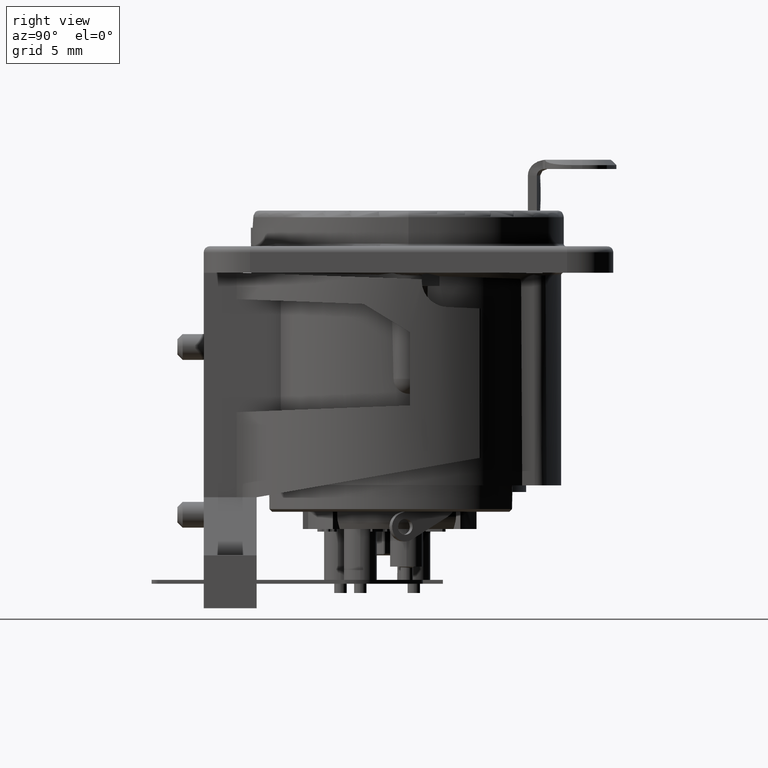
[diagram: clean part render]
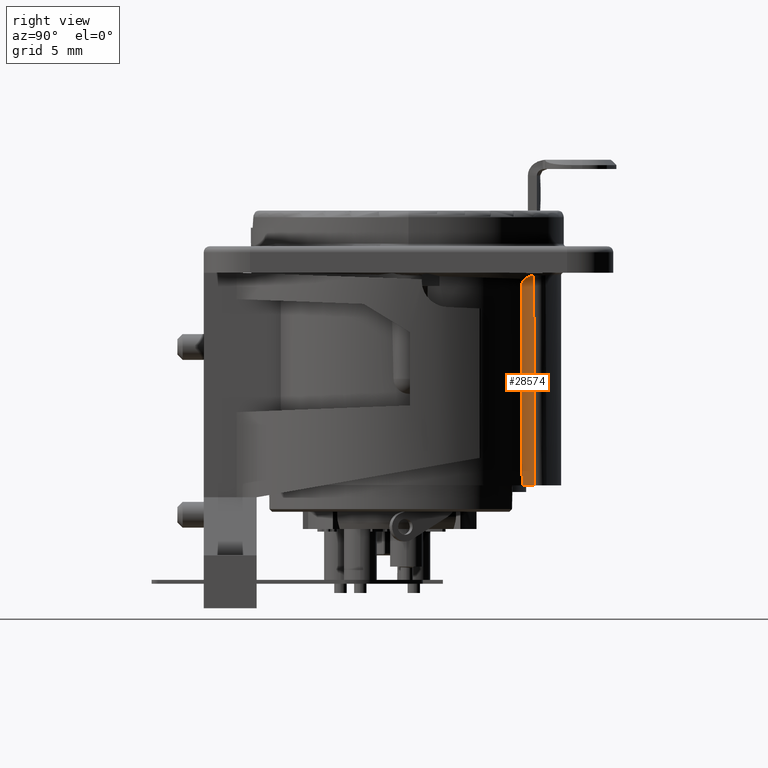
[diagram: same view with one face highlighted and labeled with its STEP entity id]
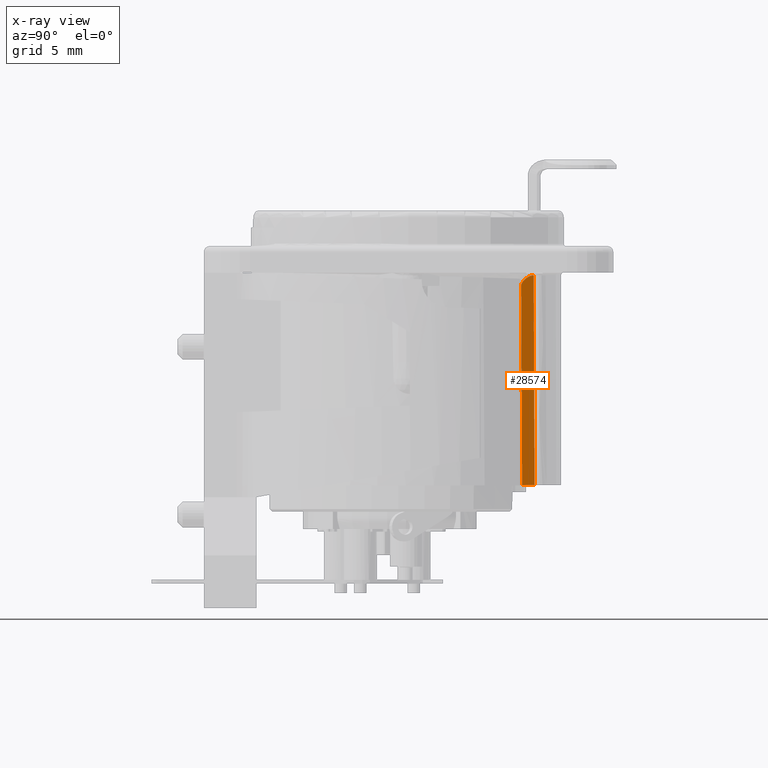
[diagram: x-ray of the same camera — body ghosted, the highlighted face saturated]
A machine part, right view. The second image highlights one B-rep face of the part: STEP entity #28574.
The next image is the same camera in x-ray: the body ghosted, the highlighted face saturated — about 0% of this face is hidden behind the body in this view.
In plain terms, the highlighted planar face has unit normal (1, 0, -0.0087).
Its self-contained STEP definition (entity closure, byte-faithful):
#31=DIRECTION('',(0.E0,-1.E0,0.E0));
#32=VECTOR('',#31,9.404690249078E-1);
#33=CARTESIAN_POINT('',(5.609497428569E0,1.044527015980E1,-1.61E1));
#34=LINE('',#33,#32);
#42=CARTESIAN_POINT('',(5.609497428569E0,1.044527015980E1,-1.61E1));
#3367=CARTESIAN_POINT('',(5.748266552123E0,1.037700392438E1,
-1.986363022140E-1));
#3652=CARTESIAN_POINT('',(5.741853859109E0,9.425434752600E0,
-9.334552884542E-1));
#3653=CARTESIAN_POINT('',(5.697735068161E0,9.452311353703E0,-5.988967988501E0));
#3654=CARTESIAN_POINT('',(5.653616257821E0,9.478763298249E0,-1.104448291075E1));
#3655=CARTESIAN_POINT('',(5.609497428569E0,9.504801134888E0,-1.61E1));
#3657=CARTESIAN_POINT('',(5.748266552123E0,1.037700392438E1,
-1.986363022140E-1));
#3658=CARTESIAN_POINT('',(5.748262155965E0,1.035549667363E1,
-1.991400520731E-1));
#3659=CARTESIAN_POINT('',(5.748236726154E0,1.031135433804E1,
-2.020498470963E-1));
#3660=CARTESIAN_POINT('',(5.748143891634E0,1.024160846039E1,
-2.126893065802E-1));
#3661=CARTESIAN_POINT('',(5.747991554120E0,1.016882616655E1,
-2.301450072678E-1));
#3662=CARTESIAN_POINT('',(5.747775394651E0,1.009352286981E1,
-2.549145494673E-1));
#3663=CARTESIAN_POINT('',(5.747492124801E0,1.001645848976E1,
-2.873740268955E-1));
#3664=CARTESIAN_POINT('',(5.747139608133E0,9.938564220731E0,
-3.277684447109E-1));
#3665=CARTESIAN_POINT('',(5.746720189163E0,9.861321475728E0,
-3.758290960490E-1));
#3666=CARTESIAN_POINT('',(5.746233465140E0,9.785635670333E0,
-4.316021453549E-1));
#3667=CARTESIAN_POINT('',(5.745716155718E0,9.717032871677E0,
-4.908799336039E-1));
#3668=CARTESIAN_POINT('',(5.745204623549E0,9.658238771325E0,
-5.494957143866E-1));
#3669=CARTESIAN_POINT('',(5.744698569218E0,9.607320457038E0,
-6.074837970546E-1));
#3670=CARTESIAN_POINT('',(5.744201425998E0,9.563447105837E0,
-6.644507675283E-1));
#3671=CARTESIAN_POINT('',(5.743713543767E0,9.525724331077E0,
-7.203565338423E-1));
#3672=CARTESIAN_POINT('',(5.743235098581E0,9.493494273849E0,
-7.751809218969E-1));
#3673=CARTESIAN_POINT('',(5.742765750621E0,9.466209985451E0,
-8.289628710213E-1));
#3674=CARTESIAN_POINT('',(5.742305211747E0,9.443437151927E0,
-8.817353988929E-1));
#3675=CARTESIAN_POINT('',(5.742003301925E0,9.431003199934E0,
-9.163308379494E-1));
#3676=CARTESIAN_POINT('',(5.741853859109E0,9.425434752601E0,
-9.334552884489E-1));
#3678=CARTESIAN_POINT('',(5.609497428569E0,1.044527015980E1,-1.61E1));
#3679=CARTESIAN_POINT('',(5.624960800365E0,1.043780269582E1,-1.432807309943E1));
#3680=CARTESIAN_POINT('',(5.655857826936E0,1.042278944294E1,-1.078762491159E1));
#3681=CARTESIAN_POINT('',(5.702114323106E0,1.040003415423E1,-5.487153745823E0));
#3682=CARTESIAN_POINT('',(5.732892409975E0,1.038470689792E1,-1.960338497944E0));
#3683=CARTESIAN_POINT('',(5.748266552123E0,1.037700392438E1,
-1.986363022140E-1));
#19406=VERTEX_POINT('',#42);
#19486=VERTEX_POINT('',#3367);
#23394=VERTEX_POINT('',#3652);
#23395=VERTEX_POINT('',#3655);
#28563=CARTESIAN_POINT('',(5.75E0,1.295162925296E1,0.E0));
#28564=DIRECTION('',(9.999619230642E-1,0.E0,-8.726535498374E-3));
#28565=DIRECTION('',(0.E0,-1.E0,0.E0));
#28566=AXIS2_PLACEMENT_3D('',#28563,#28564,#28565);
#28567=PLANE('',#28566);
#28568=ORIENTED_EDGE('',*,*,#24028,.F.);
#28569=ORIENTED_EDGE('',*,*,#28558,.F.);
#28570=ORIENTED_EDGE('',*,*,#27735,.F.);
#28571=ORIENTED_EDGE('',*,*,#23726,.T.);
#28572=EDGE_LOOP('',(#28568,#28569,#28570,#28571));
#28573=FACE_OUTER_BOUND('',#28572,.F.);
#28574=ADVANCED_FACE('',(#28573),#28567,.T.);
#3656=B_SPLINE_CURVE_WITH_KNOTS('',3,(#3652,#3653,#3654,#3655),.UNSPECIFIED.,
.F.,.F.,(4,4),(0.E0,1.E0),.UNSPECIFIED.);
#3677=B_SPLINE_CURVE_WITH_KNOTS('',3,(#3657,#3658,#3659,#3660,#3661,#3662,#3663,
#3664,#3665,#3666,#3667,#3668,#3669,#3670,#3671,#3672,#3673,#3674,#3675,#3676),
.UNSPECIFIED.,.F.,.F.,(4,1,1,1,1,1,1,1,1,1,1,1,1,1,1,1,1,4),(0.E0,
5.882352941176E-2,1.176470588235E-1,1.764705882353E-1,2.352941176471E-1,
2.941176470588E-1,3.529411764706E-1,4.117647058824E-1,4.705882352941E-1,
5.294117647059E-1,5.882352941176E-1,6.470588235294E-1,7.058823529412E-1,
7.647058823529E-1,8.235294117647E-1,8.823529411765E-1,9.411764705882E-1,1.E0),
.UNSPECIFIED.);
#3684=B_SPLINE_CURVE_WITH_KNOTS('',3,(#3678,#3679,#3680,#3681,#3682,#3683),
.UNSPECIFIED.,.F.,.F.,(4,1,1,4),(0.E0,3.333333333333E-1,6.666666666667E-1,1.E0),
.UNSPECIFIED.);
#23726=EDGE_CURVE('',#19406,#23395,#34,.T.);
#24028=EDGE_CURVE('',#23394,#23395,#3656,.T.);
#27735=EDGE_CURVE('',#19406,#19486,#3684,.T.);
#28558=EDGE_CURVE('',#19486,#23394,#3677,.T.);